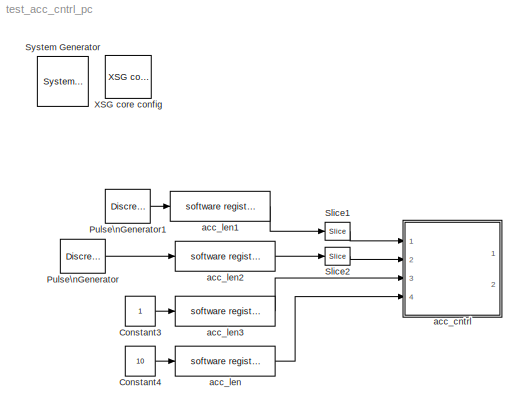
MODEL test_acc_cntrl_pc
KIND model
BLOCK [Reference]  System Generator  REF=xbsIndex_r3/ System Generator
  AttributesFormatString = System\\nGenerator
  Ports = []
  ShowPortLabels = on
  SourceBlock = xbsIndex_r3/ System Generator
  SourceType = Xilinx System Generator
  Tag = genX
  UserData = DataTag0
  UserDataPersistent = on
  core_generation = According to Block Masks
  dbl_ovrd = According to Block Masks
  deprecated_control = off
  directory = ./pocket_corr_r304/sysgen
  eval_field = 0
  incr_netlist = off
  package = ff1152
  part = xc2vp50
  run_coregen = off
  simulink_period = 1
  speed = -7
  synthesis_tool = XST
  sysclk_period = 5
  testbench = off
  trim_vbits = Everywhere in SubSystem
  xilinxfamily = Virtex2P
BLOCK [Constant] Constant3
BLOCK [Constant] Constant4
  Value = 10
BLOCK [DiscretePulseGenerator] Pulse\nGenerator
  Period = 128
  PhaseDelay = 10
  Ports = [0, 1]
BLOCK [DiscretePulseGenerator] Pulse\nGenerator1
  Period = 20000
  PhaseDelay = 2
  Ports = [0, 1]
BLOCK [Reference] Slice1  REF=xbsIndex_r3/Slice
  Ports = [1, 1]
  SourceBlock = xbsIndex_r3/Slice
  SourceType = Xilinx Slice Block
  base0 = LSB of Input
  base1 = MSB of Input
  bit0 = 0
  bit1 = 0
  boolean_output = on
  dbl_ovrd = off
  explicit_period = off
  mode = Lower Bit Location + Width
  nbits = 1
  period = 1
BLOCK [Reference] Slice2  REF=xbsIndex_r3/Slice
  Ports = [1, 1]
  SourceBlock = xbsIndex_r3/Slice
  SourceType = Xilinx Slice Block
  base0 = LSB of Input
  base1 = MSB of Input
  bit0 = 0
  bit1 = 0
  boolean_output = on
  dbl_ovrd = off
  explicit_period = off
  mode = Lower Bit Location + Width
  nbits = 1
  period = 1
BLOCK [Reference] XSG core config  REF=xps_library/XSG core config  (lib defined in mdl_00b5cec29cd0, mdl_02ab6ecaa3d1, +5 more)
  Ports = []
  ShowPortLabels = on
  SourceBlock = xps_library/XSG core config
  SourceType = xsg core config
  Tag = xps:xsg
  clk_rate = 200
  clk_src = adc0_clk
  gpio_clk_bit_index = 0
  gpio_clk_io_group = iBOB:sma
  hw_sys = iBOB
  ibob_linux = off
  mpc_type = powerpc405
  sample_period = 1
  synthesis_tool = XST
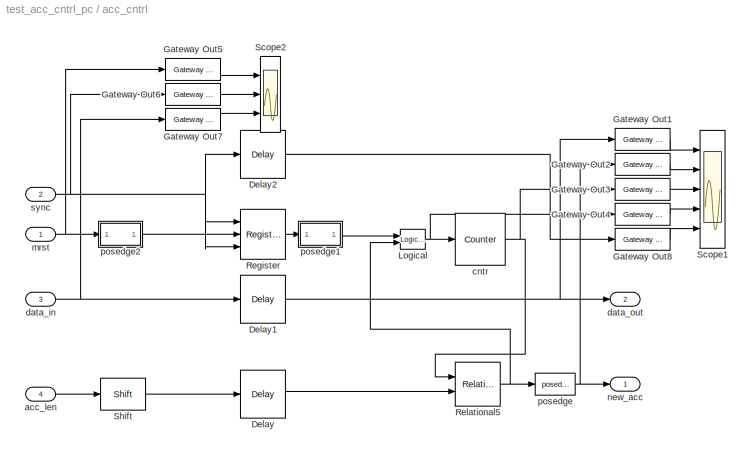
BLOCK [SubSystem] acc_cntrl
  MaskEnableString = on
  MaskIconFrame = on
  MaskIconOpaque = on
  MaskIconRotate = none
  MaskIconUnits = autoscale
  MaskPromptString = Number of Channels (2^?)
  MaskStyleString = edit
  MaskToolTipString = on
  MaskTunableValueString = on
  MaskValueString = 7
  MaskVariables = chan_bits=@1;
  MaskVisibilityString = on
  MinAlgLoopOccurrences = off
  Ports = [4, 2]
  RTWSystemCode = Auto
  TreatAsAtomicUnit = off
BLOCK [Reference] acc_cntrl/Delay  REF=xbsIndex_r3/Delay
  Ports = [1, 1]
  SourceBlock = xbsIndex_r3/Delay
  SourceType = Xilinx Delay Block
  accept_only_valid = off
  dbl_ovrd = off
  en = off
  explicit_period = off
  init_zero = on
  latency = 1
  period = 1
  reg_retiming = on
  show_param = off
  xl_area = [0, 0, 0, 0, 0, 0, 0]
  xl_use_area = off
BLOCK [Reference] acc_cntrl/Delay1  REF=xbsIndex_r3/Delay
  Ports = [1, 1]
  SourceBlock = xbsIndex_r3/Delay
  SourceType = Xilinx Delay Block
  accept_only_valid = off
  dbl_ovrd = off
  en = off
  explicit_period = off
  init_zero = on
  latency = 1
  period = 1
  reg_retiming = on
  show_param = off
  xl_area = [0, 0, 0, 0, 0, 0, 0]
  xl_use_area = off
BLOCK [Reference] acc_cntrl/Delay2  REF=xbsIndex_r3/Delay
  Ports = [1, 1]
  SourceBlock = xbsIndex_r3/Delay
  SourceType = Xilinx Delay Block
  accept_only_valid = off
  dbl_ovrd = off
  en = off
  explicit_period = off
  init_zero = on
  latency = 1
  period = 1
  reg_retiming = on
  show_param = off
  xl_area = [0, 0, 0, 0, 0, 0, 0]
  xl_use_area = off
BLOCK [Reference] acc_cntrl/Gateway Out1  REF=xbsIndex_r3/Gateway Out
  LOCs = {}
  Ports = [1, 1]
  SourceBlock = xbsIndex_r3/Gateway Out
  SourceType = Xilinx Gateway Out
  arith_type = Boolean
  bin_pt = 6
  hdl_port = on
  locs_specified = off
  nbits = 8
  needs_fixed_name = off
  output_type = Double
  overflow = Wrap
  quantization = Truncate
  show_param = off
  timing_constraint = None
  xl_area = [0, 0, 0, 0, 0, 0, 0]
  xl_use_area = off
BLOCK [Reference] acc_cntrl/Gateway Out2  REF=xbsIndex_r3/Gateway Out
  LOCs = {}
  Ports = [1, 1]
  SourceBlock = xbsIndex_r3/Gateway Out
  SourceType = Xilinx Gateway Out
  arith_type = Boolean
  bin_pt = 6
  hdl_port = on
  locs_specified = off
  nbits = 8
  needs_fixed_name = off
  output_type = Double
  overflow = Wrap
  quantization = Truncate
  show_param = off
  timing_constraint = None
  xl_area = [0, 0, 0, 0, 0, 0, 0]
  xl_use_area = off
BLOCK [Reference] acc_cntrl/Gateway Out3  REF=xbsIndex_r3/Gateway Out
  LOCs = {}
  Ports = [1, 1]
  SourceBlock = xbsIndex_r3/Gateway Out
  SourceType = Xilinx Gateway Out
  arith_type = Boolean
  bin_pt = 6
  hdl_port = on
  locs_specified = off
  nbits = 8
  needs_fixed_name = off
  output_type = Double
  overflow = Wrap
  quantization = Truncate
  show_param = off
  timing_constraint = None
  xl_area = [0, 0, 0, 0, 0, 0, 0]
  xl_use_area = off
BLOCK [Reference] acc_cntrl/Gateway Out4  REF=xbsIndex_r3/Gateway Out
  LOCs = {}
  Ports = [1, 1]
  SourceBlock = xbsIndex_r3/Gateway Out
  SourceType = Xilinx Gateway Out
  arith_type = Boolean
  bin_pt = 6
  hdl_port = on
  locs_specified = off
  nbits = 8
  needs_fixed_name = off
  output_type = Double
  overflow = Wrap
  quantization = Truncate
  show_param = off
  timing_constraint = None
  xl_area = [0, 0, 0, 0, 0, 0, 0]
  xl_use_area = off
BLOCK [Reference] acc_cntrl/Gateway Out5  REF=xbsIndex_r3/Gateway Out
  LOCs = {}
  Ports = [1, 1]
  SourceBlock = xbsIndex_r3/Gateway Out
  SourceType = Xilinx Gateway Out
  arith_type = Boolean
  bin_pt = 6
  hdl_port = on
  locs_specified = off
  nbits = 8
  needs_fixed_name = off
  output_type = Double
  overflow = Wrap
  quantization = Truncate
  show_param = off
  timing_constraint = None
  xl_area = [0, 0, 0, 0, 0, 0, 0]
  xl_use_area = off
BLOCK [Reference] acc_cntrl/Gateway Out6  REF=xbsIndex_r3/Gateway Out
  LOCs = {}
  Ports = [1, 1]
  SourceBlock = xbsIndex_r3/Gateway Out
  SourceType = Xilinx Gateway Out
  arith_type = Boolean
  bin_pt = 6
  hdl_port = on
  locs_specified = off
  nbits = 8
  needs_fixed_name = off
  output_type = Double
  overflow = Wrap
  quantization = Truncate
  show_param = off
  timing_constraint = None
  xl_area = [0, 0, 0, 0, 0, 0, 0]
  xl_use_area = off
BLOCK [Reference] acc_cntrl/Gateway Out7  REF=xbsIndex_r3/Gateway Out
  LOCs = {}
  Ports = [1, 1]
  SourceBlock = xbsIndex_r3/Gateway Out
  SourceType = Xilinx Gateway Out
  arith_type = Boolean
  bin_pt = 6
  hdl_port = on
  locs_specified = off
  nbits = 8
  needs_fixed_name = off
  output_type = Double
  overflow = Wrap
  quantization = Truncate
  show_param = off
  timing_constraint = None
  xl_area = [0, 0, 0, 0, 0, 0, 0]
  xl_use_area = off
BLOCK [Reference] acc_cntrl/Gateway Out8  REF=xbsIndex_r3/Gateway Out
  LOCs = {}
  Ports = [1, 1]
  SourceBlock = xbsIndex_r3/Gateway Out
  SourceType = Xilinx Gateway Out
  arith_type = Boolean
  bin_pt = 6
  hdl_port = on
  locs_specified = off
  nbits = 8
  needs_fixed_name = off
  output_type = Double
  overflow = Wrap
  quantization = Truncate
  show_param = off
  timing_constraint = None
  xl_area = [0, 0, 0, 0, 0, 0, 0]
  xl_use_area = off
BLOCK [Reference] acc_cntrl/Logical  REF=xbsIndex_r3/Logical
  Ports = [2, 1]
  SourceBlock = xbsIndex_r3/Logical
  SourceType = Xilinx Logical Block
  align_bp = on
  arith_type = Unsigned
  bin_pt = 2
  dbl_ovrd = off
  en = off
  explicit_period = off
  inputs = 2
  latency = 0
  logical_function = OR
  n_bits = 8
  period = 1
  precision = Full
  show_param = off
  xl_area = [0, 0, 0, 0, 0, 0, 0]
  xl_use_area = off
BLOCK [Reference] acc_cntrl/Register  REF=xbsIndex_r3/Register
  Ports = [3, 1]
  SourceBlock = xbsIndex_r3/Register
  SourceType = Xilinx Register Block
  dbl_ovrd = off
  en = on
  explicit_period = off
  init = 0
  out_en = off
  period = 1
  reg_only_valid = off
  rst = on
  show_param = off
  xl_area = [0, 0, 0, 0, 0, 0, 0]
  xl_use_area = off
BLOCK [Reference] acc_cntrl/Relational5  REF=xbsIndex_r3/Relational
  Ports = [2, 1]
  SourceBlock = xbsIndex_r3/Relational
  SourceType = Xilinx Relational Block
  dbl_ovrd = off
  en = off
  explicit_period = on
  latency = 0
  mode = a>=b
  period = 1
  show_param = off
  xl_area = [0, 0, 0, 0, 0, 0, 0]
  xl_use_area = off
BLOCK [Scope] acc_cntrl/Scope1
  DataFormat = StructureWithTime
  LimitDataPoints = off
  NumInputPorts = 5
  Ports = [5]
  SaveName = ScopeData4
  YMax = 1~1~5~5~5
  YMin = -1~-1~-5~-5~-5
  ZoomMode = xonly
BLOCK [Scope] acc_cntrl/Scope2
  DataFormat = StructureWithTime
  LimitDataPoints = off
  NumInputPorts = 3
  Ports = [3]
  SaveName = ScopeData1
  YMax = 1~1~1
  YMin = -1~-1~-1
  ZoomMode = xonly
BLOCK [Reference] acc_cntrl/Shift  REF=xbsIndex_r3/Shift
  Ports = [1, 1]
  SourceBlock = xbsIndex_r3/Shift
  SourceType = Xilinx Shift Block
  arith_type = Signed  (2's comp)
  bin_pt = 2
  dbl_ovrd = off
  en = off
  explicit_period = off
  latency = 0
  n_bits = 8
  overflow = Wrap
  period = 1
  precision = Full
  quantization = Truncate
  shift_bits = chan_bits
  shift_dir = Left
  show_param = off
  xl_area = [0, 0, 0, 0, 0, 0, 0]
  xl_use_area = off
BLOCK [Inport] acc_cntrl/acc_len
  IconDisplay = Port number
  LatchInput = off
  Port = 4
BLOCK [Reference] acc_cntrl/cntr  REF=xbsIndex_r3/Counter
  Ports = [1, 1]
  SourceBlock = xbsIndex_r3/Counter
  SourceType = Xilinx Counter Block
  arith_type = Unsigned
  bin_pt = 0
  cnt_by_val = 1
  cnt_to = Inf
  cnt_type = Free Running
  dbl_ovrd = off
  en = off
  explicit_period = on
  gen_core = off
  load_pin = off
  n_bits = 32
  operation = Up
  period = 1
  rst = on
  show_param = off
  start_count = 1
  use_rpm = on
  xl_area = [0, 0, 0, 0, 0, 0, 0]
  xl_use_area = off
BLOCK [Inport] acc_cntrl/data_in
  IconDisplay = Port number
  LatchInput = off
  Port = 3
BLOCK [Outport] acc_cntrl/data_out
  BusOutputAsStruct = off
  IconDisplay = Port number
  Port = 2
BLOCK [Inport] acc_cntrl/mrst
  IconDisplay = Port number
  LatchInput = off
  Port = 1
BLOCK [Outport] acc_cntrl/new_acc
  BusOutputAsStruct = off
  IconDisplay = Port number
BLOCK [Reference] acc_cntrl/posedge  REF=adcscope_lib/posedge  (lib defined in mdl_e6e7a0921e57)
  Ports = [1, 1]
  ShowPortLabels = on
  SourceBlock = adcscope_lib/posedge
  Tag = Rising Edge Detector
  yummy = on
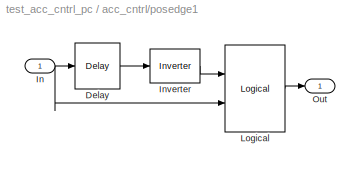
BLOCK [SubSystem] acc_cntrl/posedge1
  MinAlgLoopOccurrences = off
  Ports = [1, 1]
  RTWSystemCode = Auto
  Tag = Rising Edge Detector
  TreatAsAtomicUnit = off
BLOCK [Reference] acc_cntrl/posedge1/Delay  REF=xbsIndex_r3/Delay
  Ports = [1, 1]
  SourceBlock = xbsIndex_r3/Delay
  SourceType = Xilinx Delay Block
  accept_only_valid = off
  dbl_ovrd = off
  en = off
  explicit_period = off
  init_zero = on
  latency = 1
  period = 1
  reg_retiming = off
  show_param = off
  xl_area = [0, 0, 0, 0, 0, 0, 0]
  xl_use_area = off
BLOCK [Inport] acc_cntrl/posedge1/In
  IconDisplay = Port number
  LatchInput = off
  Port = 1
BLOCK [Reference] acc_cntrl/posedge1/Inverter  REF=xbsIndex_r3/Inverter
  Ports = [1, 1]
  SourceBlock = xbsIndex_r3/Inverter
  SourceType = Xilinx Inverter
  dbl_ovrd = off
  en = off
  explicit_period = off
  latency = 0
  period = 1
  show_param = off
  xl_area = [0, 0, 0, 0, 0, 0, 0]
  xl_use_area = off
BLOCK [Reference] acc_cntrl/posedge1/Logical  REF=xbsIndex_r3/Logical
  Ports = [2, 1]
  SourceBlock = xbsIndex_r3/Logical
  SourceType = Xilinx Logical Block
  align_bp = on
  arith_type = Unsigned
  bin_pt = 2
  dbl_ovrd = off
  en = off
  explicit_period = off
  inputs = 2
  latency = 0
  logical_function = AND
  n_bits = 8
  period = 1
  precision = Full
  show_param = off
  xl_area = [0, 0, 0, 0, 0, 0, 0]
  xl_use_area = off
BLOCK [Outport] acc_cntrl/posedge1/Out
  BusOutputAsStruct = off
  IconDisplay = Port number
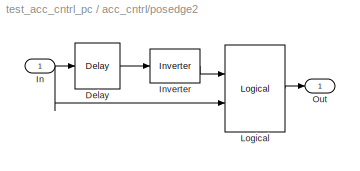
BLOCK [SubSystem] acc_cntrl/posedge2
  MinAlgLoopOccurrences = off
  Ports = [1, 1]
  RTWSystemCode = Auto
  Tag = Rising Edge Detector
  TreatAsAtomicUnit = off
BLOCK [Reference] acc_cntrl/posedge2/Delay  REF=xbsIndex_r3/Delay
  Ports = [1, 1]
  SourceBlock = xbsIndex_r3/Delay
  SourceType = Xilinx Delay Block
  accept_only_valid = off
  dbl_ovrd = off
  en = off
  explicit_period = off
  init_zero = on
  latency = 1
  period = 1
  reg_retiming = off
  show_param = off
  xl_area = [0, 0, 0, 0, 0, 0, 0]
  xl_use_area = off
BLOCK [Inport] acc_cntrl/posedge2/In
  IconDisplay = Port number
  LatchInput = off
  Port = 1
BLOCK [Reference] acc_cntrl/posedge2/Inverter  REF=xbsIndex_r3/Inverter
  Ports = [1, 1]
  SourceBlock = xbsIndex_r3/Inverter
  SourceType = Xilinx Inverter
  dbl_ovrd = off
  en = off
  explicit_period = off
  latency = 0
  period = 1
  show_param = off
  xl_area = [0, 0, 0, 0, 0, 0, 0]
  xl_use_area = off
BLOCK [Reference] acc_cntrl/posedge2/Logical  REF=xbsIndex_r3/Logical
  Ports = [2, 1]
  SourceBlock = xbsIndex_r3/Logical
  SourceType = Xilinx Logical Block
  align_bp = on
  arith_type = Unsigned
  bin_pt = 2
  dbl_ovrd = off
  en = off
  explicit_period = off
  inputs = 2
  latency = 0
  logical_function = AND
  n_bits = 8
  period = 1
  precision = Full
  show_param = off
  xl_area = [0, 0, 0, 0, 0, 0, 0]
  xl_use_area = off
BLOCK [Outport] acc_cntrl/posedge2/Out
  BusOutputAsStruct = off
  IconDisplay = Port number
BLOCK [Inport] acc_cntrl/sync
  IconDisplay = Port number
  LatchInput = off
  Port = 2
BLOCK [Reference] acc_len  REF=xps_library/software register  (lib defined in mdl_00b5cec29cd0, mdl_02ab6ecaa3d1, +5 more)
  Ports = [1, 1]
  ShowPortLabels = on
  SourceBlock = xps_library/software register
  Tag = xps:sw_reg
  arith_type = Unsigned
  bin_pt = 0
  bitwidth = 32
  gw_name = test_acc_cntrl_pc_acc_len_user_data_out
  io_dir = From Processor
  sample_period = 1
BLOCK [Reference] acc_len1  REF=xps_library/software register  (lib defined in mdl_00b5cec29cd0, mdl_02ab6ecaa3d1, +5 more)
  Ports = [1, 1]
  ShowPortLabels = on
  SourceBlock = xps_library/software register
  Tag = xps:sw_reg
  arith_type = Unsigned
  bin_pt = 0
  bitwidth = 32
  gw_name = test_acc_cntrl_pc_acc_len1_user_data_out
  io_dir = From Processor
  sample_period = 1
BLOCK [Reference] acc_len2  REF=xps_library/software register  (lib defined in mdl_00b5cec29cd0, mdl_02ab6ecaa3d1, +5 more)
  Ports = [1, 1]
  ShowPortLabels = on
  SourceBlock = xps_library/software register
  Tag = xps:sw_reg
  arith_type = Unsigned
  bin_pt = 0
  bitwidth = 32
  gw_name = test_acc_cntrl_pc_acc_len2_user_data_out
  io_dir = From Processor
  sample_period = 1
BLOCK [Reference] acc_len3  REF=xps_library/software register  (lib defined in mdl_00b5cec29cd0, mdl_02ab6ecaa3d1, +5 more)
  Ports = [1, 1]
  ShowPortLabels = on
  SourceBlock = xps_library/software register
  Tag = xps:sw_reg
  arith_type = Unsigned
  bin_pt = 0
  bitwidth = 32
  gw_name = test_acc_cntrl_pc_acc_len3_user_data_out
  io_dir = From Processor
  sample_period = 1
LINE Constant3:1 -> acc_len3:1
LINE Constant4:1 -> acc_len:1
LINE Pulse\nGenerator1:1 -> acc_len1:1
LINE Pulse\nGenerator:1 -> acc_len2:1
LINE Slice1:1 -> acc_cntrl:1
LINE Slice2:1 -> acc_cntrl:2
NET acc_cntrl/Delay1:1 -> acc_cntrl/Gateway Out1:1, acc_cntrl/data_out:1
LINE acc_cntrl/Delay2:1 -> acc_cntrl/Gateway Out8:1
LINE acc_cntrl/Delay:1 -> acc_cntrl/Relational5:2
LINE acc_cntrl/Gateway Out1:1 -> acc_cntrl/Scope1:1
LINE acc_cntrl/Gateway Out2:1 -> acc_cntrl/Scope1:2
LINE acc_cntrl/Gateway Out3:1 -> acc_cntrl/Scope1:3
LINE acc_cntrl/Gateway Out4:1 -> acc_cntrl/Scope1:4
LINE acc_cntrl/Gateway Out5:1 -> acc_cntrl/Scope2:1
LINE acc_cntrl/Gateway Out6:1 -> acc_cntrl/Scope2:2
LINE acc_cntrl/Gateway Out7:1 -> acc_cntrl/Scope2:3
LINE acc_cntrl/Gateway Out8:1 -> acc_cntrl/Scope1:5
NET acc_cntrl/Logical:1 -> acc_cntrl/Gateway Out4:1, acc_cntrl/cntr:1
LINE acc_cntrl/Register:1 -> acc_cntrl/posedge1:1
NET acc_cntrl/Relational5:1 -> acc_cntrl/Logical:2, acc_cntrl/posedge:1
LINE acc_cntrl/Shift:1 -> acc_cntrl/Delay:1
LINE acc_cntrl/acc_len:1 -> acc_cntrl/Shift:1
NET acc_cntrl/cntr:1 -> acc_cntrl/Gateway Out3:1, acc_cntrl/Relational5:1
NET acc_cntrl/data_in:1 -> acc_cntrl/Delay1:1, acc_cntrl/Gateway Out7:1
NET acc_cntrl/mrst:1 -> acc_cntrl/Gateway Out5:1, acc_cntrl/posedge2:1
LINE acc_cntrl/posedge1/Delay:1 -> acc_cntrl/posedge1/Inverter:1
NET acc_cntrl/posedge1/In:1 -> acc_cntrl/posedge1/Delay:1, acc_cntrl/posedge1/Logical:2
LINE acc_cntrl/posedge1/Inverter:1 -> acc_cntrl/posedge1/Logical:1
LINE acc_cntrl/posedge1/Logical:1 -> acc_cntrl/posedge1/Out:1
LINE acc_cntrl/posedge1:1 -> acc_cntrl/Logical:1
LINE acc_cntrl/posedge2/Delay:1 -> acc_cntrl/posedge2/Inverter:1
NET acc_cntrl/posedge2/In:1 -> acc_cntrl/posedge2/Delay:1, acc_cntrl/posedge2/Logical:2
LINE acc_cntrl/posedge2/Inverter:1 -> acc_cntrl/posedge2/Logical:1
LINE acc_cntrl/posedge2/Logical:1 -> acc_cntrl/posedge2/Out:1
LINE acc_cntrl/posedge2:1 -> acc_cntrl/Register:2
NET acc_cntrl/posedge:1 -> acc_cntrl/Gateway Out2:1, acc_cntrl/new_acc:1
NET acc_cntrl/sync:1 -> acc_cntrl/Delay2:1, acc_cntrl/Gateway Out6:1, acc_cntrl/Register:1, acc_cntrl/Register:3
LINE acc_len1:1 -> Slice1:1
LINE acc_len2:1 -> Slice2:1
LINE acc_len3:1 -> acc_cntrl:3
LINE acc_len:1 -> acc_cntrl:4
note: NET lines group one-source signal fan-out (src -> all destinations, sorted); 1:1 wires keep LINE
